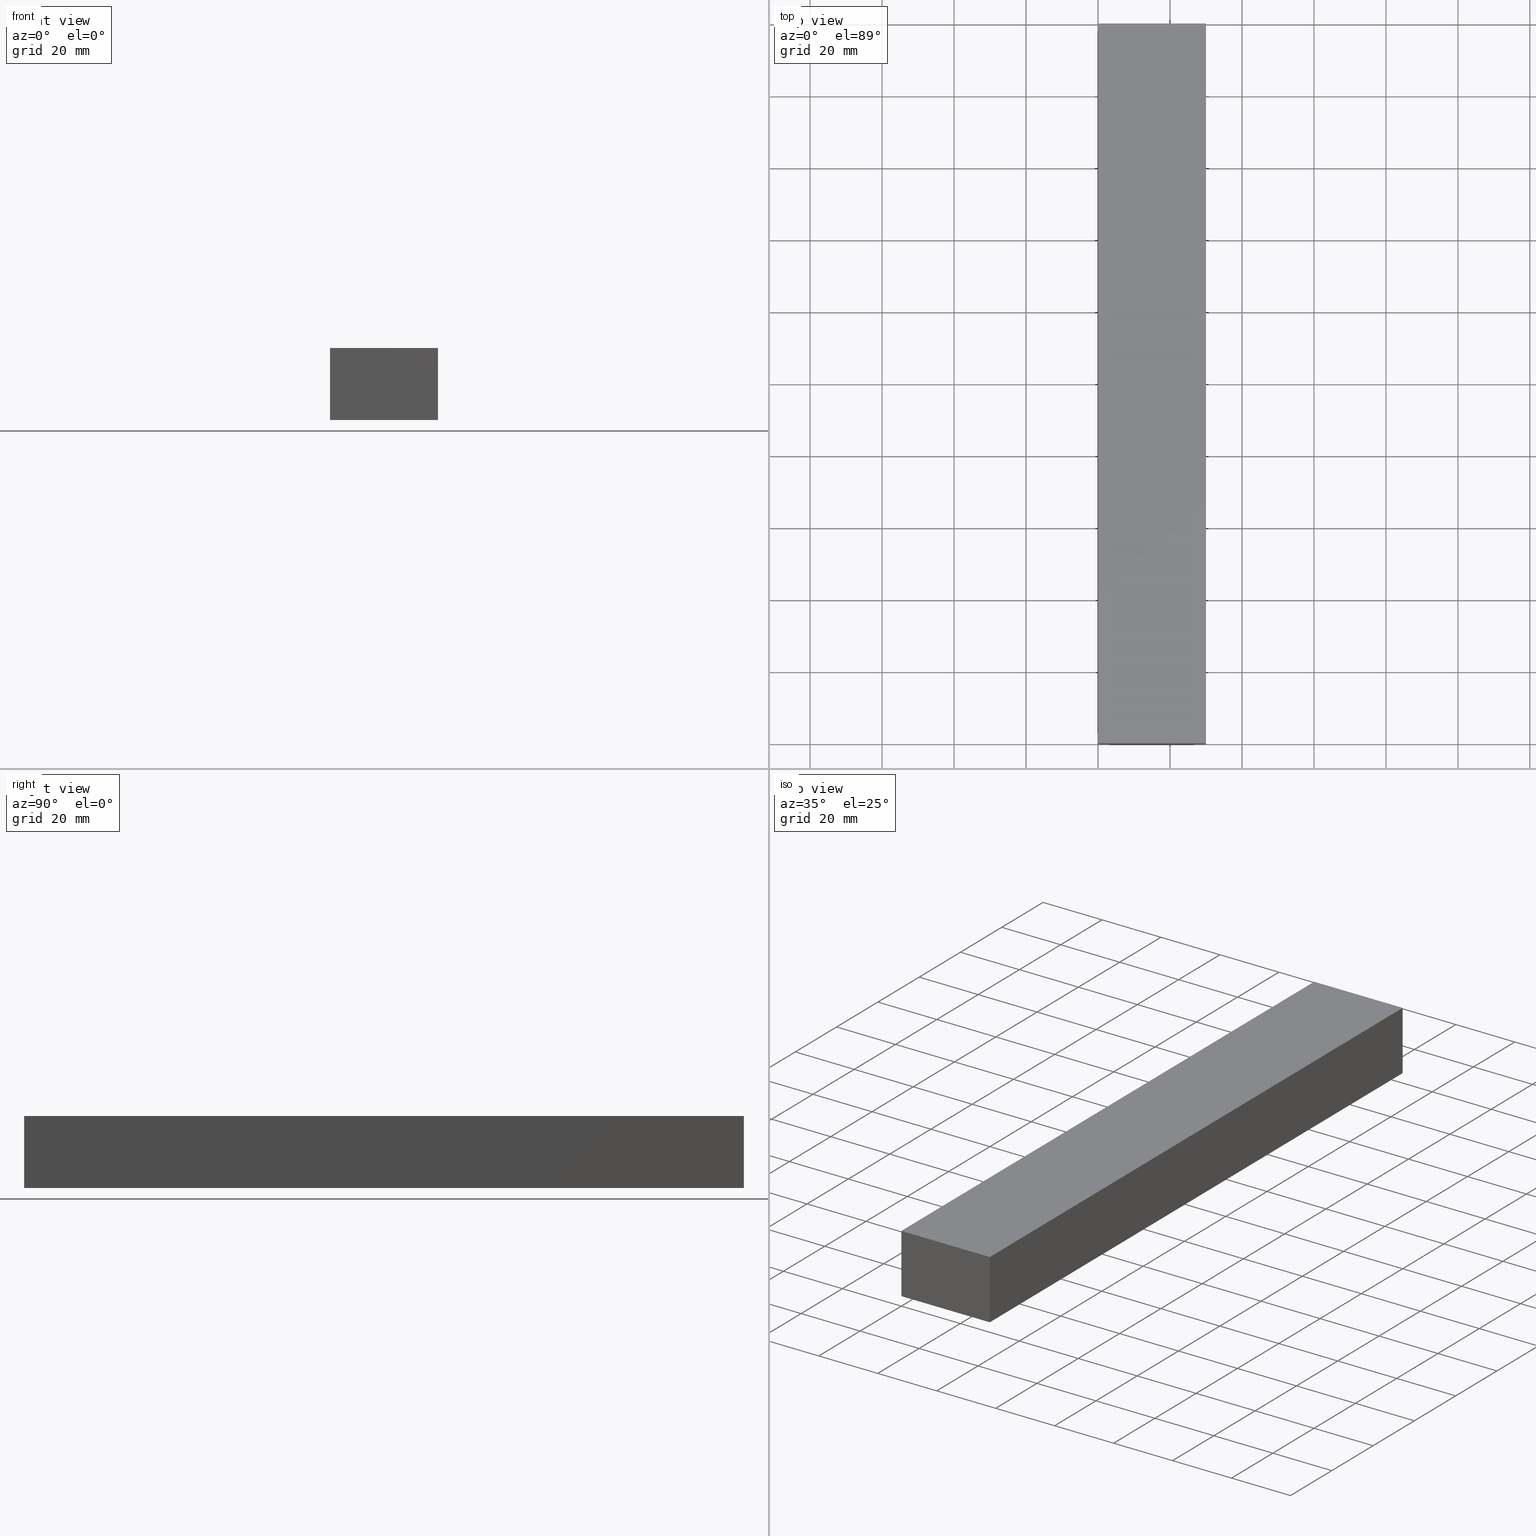
[diagram: canonical four-view strip — front | top / right | iso, engineering-drawing reading convention]
A machine part, canonical four-view strip (front | top / right | iso — engineering-drawing reading convention). The complete STEP part file that produces these views, byte-faithful:
ISO-10303-21;
HEADER;
FILE_DESCRIPTION (( 'STEP AP214' ),
    '1' );
FILE_NAME ('TM_340_18.STEP',
    '2016-05-09T07:18:51',
    ( '' ),
    ( '' ),
    'SwSTEP 2.0',
    'SolidWorks 2015',
    '' );
FILE_SCHEMA (( 'AUTOMOTIVE_DESIGN' ));
ENDSEC;

DATA;
#1 = FACE_OUTER_BOUND ( 'NONE', #51, .T. ) ;
#2 = EDGE_LOOP ( 'NONE', ( #26, #179, #107, #213 ) ) ;
#3 = AXIS2_PLACEMENT_3D ( 'NONE', #12, #77, #70 ) ;
#4 = CARTESIAN_POINT ( 'NONE',  ( 30.00000000000000000, 200.0000000000000000, -10.00000000000000000 ) ) ;
#5 = DIRECTION ( 'NONE',  ( -0.0000000000000000000, 0.0000000000000000000, 1.000000000000000000 ) ) ;
#6 = ADVANCED_FACE ( 'NONE', ( #190 ), #117, .T. ) ;
#7 = ORIENTED_EDGE ( 'NONE', *, *, #164, .F. ) ;
#8 = CARTESIAN_POINT ( 'NONE',  ( 30.00000000000000000, 200.0000000000000000, -10.00000000000000000 ) ) ;
#9 = DIRECTION ( 'NONE',  ( 0.0000000000000000000, 0.0000000000000000000, 1.000000000000000000 ) ) ;
#10 = LINE ( 'NONE', #123, #193 ) ;
#11 = ORIENTED_EDGE ( 'NONE', *, *, #150, .F. ) ;
#12 = CARTESIAN_POINT ( 'NONE',  ( 0.0000000000000000000, 0.0000000000000000000, 0.0000000000000000000 ) ) ;
#13 = FILL_AREA_STYLE_COLOUR ( '', #25 ) ;
#14 = VECTOR ( 'NONE', #145, 1000.000000000000000 ) ;
#15 = PRODUCT_CONTEXT ( 'NONE', #85, 'mechanical' ) ;
#16 = VERTEX_POINT ( 'NONE', #53 ) ;
#17 = UNCERTAINTY_MEASURE_WITH_UNIT (LENGTH_MEASURE( 1.000000000000000100E-005 ), #48, 'distance_accuracy_value', 'NONE');
#18 = DIRECTION ( 'NONE',  ( 1.000000000000000000, 0.0000000000000000000, 0.0000000000000000000 ) ) ;
#19 =( GEOMETRIC_REPRESENTATION_CONTEXT ( 3 ) GLOBAL_UNCERTAINTY_ASSIGNED_CONTEXT ( ( #17 ) ) GLOBAL_UNIT_ASSIGNED_CONTEXT ( ( #48, #102, #20 ) ) REPRESENTATION_CONTEXT ( 'NONE', 'WORKASPACE' ) );
#20 =( NAMED_UNIT ( * ) SI_UNIT ( $, .STERADIAN. ) SOLID_ANGLE_UNIT ( ) );
#21 = CARTESIAN_POINT ( 'NONE',  ( 0.0000000000000000000, 0.0000000000000000000, -10.00000000000000000 ) ) ;
#22 = DIRECTION ( 'NONE',  ( -1.000000000000000000, 0.0000000000000000000, 0.0000000000000000000 ) ) ;
#23 = ORIENTED_EDGE ( 'NONE', *, *, #65, .T. ) ;
#24 = CARTESIAN_POINT ( 'NONE',  ( 30.00000000000000000, 200.0000000000000000, -10.00000000000000000 ) ) ;
#25 = COLOUR_RGB ( '',0.7921568627450980000, 0.8196078431372548800, 0.9333333333333333500 ) ;
#26 = ORIENTED_EDGE ( 'NONE', *, *, #97, .F. ) ;
#27 = SHAPE_REPRESENTATION ( 'TM_340_18', ( #56, #155 ), #194 ) ;
#28 = MECHANICAL_DESIGN_GEOMETRIC_PRESENTATION_REPRESENTATION (  '', ( #52 ), #19 ) ;
#29 = VECTOR ( 'NONE', #126, 1000.000000000000000 ) ;
#30 = APPLICATION_CONTEXT ( 'automotive_design' ) ;
#31 = CARTESIAN_POINT ( 'NONE',  ( 0.0000000000000000000, 0.0000000000000000000, -10.00000000000000000 ) ) ;
#32 = DIRECTION ( 'NONE',  ( 1.000000000000000000, 0.0000000000000000000, 0.0000000000000000000 ) ) ;
#33 = PLANE ( 'NONE',  #136 ) ;
#34 = LINE ( 'NONE', #90, #29 ) ;
#35 =( LENGTH_UNIT ( ) NAMED_UNIT ( * ) SI_UNIT ( .MILLI., .METRE. ) );
#36 = ADVANCED_FACE ( 'NONE', ( #43 ), #221, .F. ) ;
#37 = DIRECTION ( 'NONE',  ( 0.0000000000000000000, 0.0000000000000000000, 1.000000000000000000 ) ) ;
#38 =( NAMED_UNIT ( * ) PLANE_ANGLE_UNIT ( ) SI_UNIT ( $, .RADIAN. ) );
#39 = ORIENTED_EDGE ( 'NONE', *, *, #135, .F. ) ;
#40 = SURFACE_STYLE_USAGE ( .BOTH. , #201 ) ;
#41 = SHAPE_DEFINITION_REPRESENTATION ( #139, #27 ) ;
#42 = PRESENTATION_LAYER_ASSIGNMENT (  '', '', ( #52 ) ) ;
#43 = FACE_OUTER_BOUND ( 'NONE', #204, .T. ) ;
#44 = DIRECTION ( 'NONE',  ( 0.0000000000000000000, 0.0000000000000000000, 1.000000000000000000 ) ) ;
#45 = DIRECTION ( 'NONE',  ( 1.000000000000000000, 0.0000000000000000000, 0.0000000000000000000 ) ) ;
#46 = ORIENTED_EDGE ( 'NONE', *, *, #110, .F. ) ;
#47 = ORIENTED_EDGE ( 'NONE', *, *, #101, .F. ) ;
#48 =( LENGTH_UNIT ( ) NAMED_UNIT ( * ) SI_UNIT ( .MILLI., .METRE. ) );
#49 = VECTOR ( 'NONE', #22, 1000.000000000000000 ) ;
#50 = PRODUCT_DEFINITION ( 'UNKNOWN', '', #230, #64 ) ;
#51 = EDGE_LOOP ( 'NONE', ( #87, #11, #67, #62 ) ) ;
#52 = STYLED_ITEM ( 'NONE', ( #173 ), #187 ) ;
#53 = CARTESIAN_POINT ( 'NONE',  ( 30.00000000000000000, 0.0000000000000000000, 10.00000000000000000 ) ) ;
#54 = DIRECTION ( 'NONE',  ( 1.000000000000000000, 0.0000000000000000000, 0.0000000000000000000 ) ) ;
#55 = DIRECTION ( 'NONE',  ( 0.0000000000000000000, -0.0000000000000000000, -1.000000000000000000 ) ) ;
#56 = AXIS2_PLACEMENT_3D ( 'NONE', #137, #88, #202 ) ;
#57 = VECTOR ( 'NONE', #93, 1000.000000000000000 ) ;
#58 =( NAMED_UNIT ( * ) PLANE_ANGLE_UNIT ( ) SI_UNIT ( $, .RADIAN. ) );
#59 = CARTESIAN_POINT ( 'NONE',  ( 0.0000000000000000000, 200.0000000000000000, 10.00000000000000000 ) ) ;
#60 = DIRECTION ( 'NONE',  ( 0.0000000000000000000, -1.000000000000000000, 0.0000000000000000000 ) ) ;
#61 =( GEOMETRIC_REPRESENTATION_CONTEXT ( 3 ) GLOBAL_UNCERTAINTY_ASSIGNED_CONTEXT ( ( #157 ) ) GLOBAL_UNIT_ASSIGNED_CONTEXT ( ( #35, #38, #207 ) ) REPRESENTATION_CONTEXT ( 'NONE', 'WORKASPACE' ) );
#62 = ORIENTED_EDGE ( 'NONE', *, *, #131, .T. ) ;
#63 = CARTESIAN_POINT ( 'NONE',  ( 0.0000000000000000000, 0.0000000000000000000, 10.00000000000000000 ) ) ;
#64 = PRODUCT_DEFINITION_CONTEXT ( 'detailed design', #30, 'design' ) ;
#65 = EDGE_CURVE ( 'NONE', #16, #71, #89, .T. ) ;
#66 = LINE ( 'NONE', #116, #14 ) ;
#67 = ORIENTED_EDGE ( 'NONE', *, *, #101, .T. ) ;
#68 = PRESENTATION_LAYER_ASSIGNMENT (  '', '', ( #184 ) ) ;
#69 = APPLICATION_PROTOCOL_DEFINITION ( 'draft international standard', 'automotive_design', 1998, #85 ) ;
#70 = DIRECTION ( 'NONE',  ( 1.000000000000000000, 0.0000000000000000000, 0.0000000000000000000 ) ) ;
#71 = VERTEX_POINT ( 'NONE', #163 ) ;
#72 = APPLICATION_PROTOCOL_DEFINITION ( 'draft international standard', 'automotive_design', 1998, #30 ) ;
#73 = PLANE ( 'NONE',  #80 ) ;
#74 = EDGE_CURVE ( 'NONE', #71, #100, #129, .T. ) ;
#75 = PRODUCT_CONTEXT ( 'NONE', #165, 'mechanical' ) ;
#76 = DIRECTION ( 'NONE',  ( 1.000000000000000000, 0.0000000000000000000, 0.0000000000000000000 ) ) ;
#77 = DIRECTION ( 'NONE',  ( 0.0000000000000000000, 0.0000000000000000000, 1.000000000000000000 ) ) ;
#78 = DIRECTION ( 'NONE',  ( 0.0000000000000000000, 0.0000000000000000000, 1.000000000000000000 ) ) ;
#79 = CLOSED_SHELL ( 'NONE', ( #211, #166, #6, #156, #36, #125 ) ) ;
#80 = AXIS2_PLACEMENT_3D ( 'NONE', #8, #149, #9 ) ;
#81 = COLOUR_RGB ( '',0.7921568627450980000, 0.8196078431372548800, 0.9333333333333333500 ) ;
#82 = ORIENTED_EDGE ( 'NONE', *, *, #135, .T. ) ;
#83 = VECTOR ( 'NONE', #175, 1000.000000000000000 ) ;
#84 = EDGE_CURVE ( 'NONE', #195, #209, #183, .T. ) ;
#85 = APPLICATION_CONTEXT ( 'automotive_design' ) ;
#86 = SHAPE_REPRESENTATION_RELATIONSHIP ( 'NONE' , 'NONE' ,  #192, #187 ) ;
#87 = ORIENTED_EDGE ( 'NONE', *, *, #114, .F. ) ;
#88 = DIRECTION ( 'NONE',  ( 0.0000000000000000000, 0.0000000000000000000, 1.000000000000000000 ) ) ;
#89 = LINE ( 'NONE', #228, #134 ) ;
#90 = CARTESIAN_POINT ( 'NONE',  ( 0.0000000000000000000, 200.0000000000000000, -10.00000000000000000 ) ) ;
#91 = FACE_OUTER_BOUND ( 'NONE', #2, .T. ) ;
#92 = VERTEX_POINT ( 'NONE', #216 ) ;
#93 = DIRECTION ( 'NONE',  ( 0.0000000000000000000, 0.0000000000000000000, 1.000000000000000000 ) ) ;
#94 = CARTESIAN_POINT ( 'NONE',  ( 30.00000000000000000, 200.0000000000000000, 10.00000000000000000 ) ) ;
#95 = ORIENTED_EDGE ( 'NONE', *, *, #114, .T. ) ;
#96 = CARTESIAN_POINT ( 'NONE',  ( 0.0000000000000000000, 0.0000000000000000000, -10.00000000000000000 ) ) ;
#97 = EDGE_CURVE ( 'NONE', #112, #16, #180, .T. ) ;
#98 = LINE ( 'NONE', #128, #235 ) ;
#99 = ORIENTED_EDGE ( 'NONE', *, *, #164, .T. ) ;
#100 = VERTEX_POINT ( 'NONE', #59 ) ;
#101 = EDGE_CURVE ( 'NONE', #92, #195, #34, .T. ) ;
#102 =( NAMED_UNIT ( * ) PLANE_ANGLE_UNIT ( ) SI_UNIT ( $, .RADIAN. ) );
#103 = PRODUCT_DEFINITION_SHAPE ( 'NONE', 'NONE',  #239 ) ;
#104 = MECHANICAL_DESIGN_GEOMETRIC_PRESENTATION_REPRESENTATION (  '', ( #184 ), #61 ) ;
#105 = VECTOR ( 'NONE', #60, 1000.000000000000000 ) ;
#106 = MANIFOLD_SOLID_BREP ( '�޽ - �����o��1', #79 ) ;
#107 = ORIENTED_EDGE ( 'NONE', *, *, #84, .T. ) ;
#108 =( NAMED_UNIT ( * ) SI_UNIT ( $, .STERADIAN. ) SOLID_ANGLE_UNIT ( ) );
#109 = PRODUCT_RELATED_PRODUCT_CATEGORY ( 'part', '', ( #227 ) ) ;
#110 = EDGE_CURVE ( 'NONE', #209, #158, #66, .T. ) ;
#111 =( LENGTH_UNIT ( ) NAMED_UNIT ( * ) SI_UNIT ( .MILLI., .METRE. ) );
#112 = VERTEX_POINT ( 'NONE', #206 ) ;
#113 = CARTESIAN_POINT ( 'NONE',  ( 30.00000000000000000, 0.0000000000000000000, -10.00000000000000000 ) ) ;
#114 = EDGE_CURVE ( 'NONE', #100, #112, #153, .T. ) ;
#115 = AXIS2_PLACEMENT_3D ( 'NONE', #191, #203, #55 ) ;
#116 = CARTESIAN_POINT ( 'NONE',  ( 30.00000000000000000, 0.0000000000000000000, -10.00000000000000000 ) ) ;
#117 = PLANE ( 'NONE',  #177 ) ;
#118 = PLANE ( 'NONE',  #115 ) ;
#119 = ORIENTED_EDGE ( 'NONE', *, *, #110, .T. ) ;
#120 = PRODUCT_RELATED_PRODUCT_CATEGORY ( 'part', '', ( #152 ) ) ;
#121 = EDGE_CURVE ( 'NONE', #209, #16, #200, .T. ) ;
#122 = CARTESIAN_POINT ( 'NONE',  ( 0.0000000000000000000, 0.0000000000000000000, 0.0000000000000000000 ) ) ;
#123 = CARTESIAN_POINT ( 'NONE',  ( 0.0000000000000000000, 200.0000000000000000, -10.00000000000000000 ) ) ;
#124 = VECTOR ( 'NONE', #76, 1000.000000000000000 ) ;
#125 = ADVANCED_FACE ( 'NONE', ( #198 ), #33, .T. ) ;
#126 = DIRECTION ( 'NONE',  ( 0.0000000000000000000, -1.000000000000000000, 0.0000000000000000000 ) ) ;
#127 = DIRECTION ( 'NONE',  ( 1.000000000000000000, 0.0000000000000000000, 0.0000000000000000000 ) ) ;
#128 = CARTESIAN_POINT ( 'NONE',  ( 30.00000000000000000, 200.0000000000000000, -10.00000000000000000 ) ) ;
#129 = LINE ( 'NONE', #94, #83 ) ;
#130 = CARTESIAN_POINT ( 'NONE',  ( 0.0000000000000000000, 0.0000000000000000000, 10.00000000000000000 ) ) ;
#131 = EDGE_CURVE ( 'NONE', #195, #112, #146, .T. ) ;
#132 = EDGE_LOOP ( 'NONE', ( #95, #141, #23, #161 ) ) ;
#133 = ITEM_DEFINED_TRANSFORMATION ( 'NONE', 'NONE', #155,  #205 ) ;
#134 = VECTOR ( 'NONE', #218, 1000.000000000000000 ) ;
#135 = EDGE_CURVE ( 'NONE', #158, #92, #234, .T. ) ;
#136 = AXIS2_PLACEMENT_3D ( 'NONE', #63, #151, #18 ) ;
#137 = CARTESIAN_POINT ( 'NONE',  ( 0.0000000000000000000, 0.0000000000000000000, 0.0000000000000000000 ) ) ;
#138 = APPLICATION_PROTOCOL_DEFINITION ( 'draft international standard', 'automotive_design', 1998, #172 ) ;
#139 = PRODUCT_DEFINITION_SHAPE ( 'NONE', 'NONE',  #50 ) ;
#140 = FACE_OUTER_BOUND ( 'NONE', #199, .T. ) ;
#141 = ORIENTED_EDGE ( 'NONE', *, *, #97, .T. ) ;
#142 = ORIENTED_EDGE ( 'NONE', *, *, #121, .F. ) ;
#143 = CARTESIAN_POINT ( 'NONE',  ( 0.0000000000000000000, 200.0000000000000000, -10.00000000000000000 ) ) ;
#144 =( NAMED_UNIT ( * ) SI_UNIT ( $, .STERADIAN. ) SOLID_ANGLE_UNIT ( ) );
#145 = DIRECTION ( 'NONE',  ( 0.0000000000000000000, 1.000000000000000000, 0.0000000000000000000 ) ) ;
#146 = LINE ( 'NONE', #182, #57 ) ;
#147 = EDGE_LOOP ( 'NONE', ( #222, #142, #119, #99 ) ) ;
#148 = UNCERTAINTY_MEASURE_WITH_UNIT (LENGTH_MEASURE( 1.000000000000000100E-005 ), #111, 'distance_accuracy_value', 'NONE');
#149 = DIRECTION ( 'NONE',  ( 0.0000000000000000000, 1.000000000000000000, -0.0000000000000000000 ) ) ;
#150 = EDGE_CURVE ( 'NONE', #92, #100, #10, .T. ) ;
#151 = DIRECTION ( 'NONE',  ( -0.0000000000000000000, 0.0000000000000000000, 1.000000000000000000 ) ) ;
#152 = PRODUCT ( 'TM_340_18', 'TM_340_18', '', ( #15 ) ) ;
#153 = LINE ( 'NONE', #168, #105 ) ;
#154 = PLANE ( 'NONE',  #231 ) ;
#155 = AXIS2_PLACEMENT_3D ( 'NONE', #233, #237, #32 ) ;
#156 = ADVANCED_FACE ( 'NONE', ( #91 ), #118, .T. ) ;
#157 = UNCERTAINTY_MEASURE_WITH_UNIT (LENGTH_MEASURE( 1.000000000000000100E-005 ), #35, 'distance_accuracy_value', 'NONE');
#158 = VERTEX_POINT ( 'NONE', #24 ) ;
#159 = AXIS2_PLACEMENT_3D ( 'NONE', #21, #5, #127 ) ;
#160 = PRODUCT_DEFINITION_SHAPE ( 'NONE', 'NONE',  #170 ) ;
#161 = ORIENTED_EDGE ( 'NONE', *, *, #74, .T. ) ;
#162 = FILL_AREA_STYLE_COLOUR ( '', #81 ) ;
#163 = CARTESIAN_POINT ( 'NONE',  ( 30.00000000000000000, 200.0000000000000000, 10.00000000000000000 ) ) ;
#164 = EDGE_CURVE ( 'NONE', #158, #71, #98, .T. ) ;
#165 = APPLICATION_CONTEXT ( 'automotive_design' ) ;
#166 = ADVANCED_FACE ( 'NONE', ( #140 ), #73, .T. ) ;
#167 = APPLICATION_PROTOCOL_DEFINITION ( 'draft international standard', 'automotive_design', 1998, #165 ) ;
#168 = CARTESIAN_POINT ( 'NONE',  ( 0.0000000000000000000, 200.0000000000000000, 10.00000000000000000 ) ) ;
#169 = DIRECTION ( 'NONE',  ( 1.000000000000000000, 0.0000000000000000000, 0.0000000000000000000 ) ) ;
#170 = PRODUCT_DEFINITION ( 'UNKNOWN', '', #226, #188 ) ;
#171 =( REPRESENTATION_RELATIONSHIP ('NONE','NONE', #27, #192 ) REPRESENTATION_RELATIONSHIP_WITH_TRANSFORMATION ( #133 )SHAPE_REPRESENTATION_RELATIONSHIP( ) );
#172 = APPLICATION_CONTEXT ( 'automotive_design' ) ;
#173 = PRESENTATION_STYLE_ASSIGNMENT (( #40 ) ) ;
#174 = ORIENTED_EDGE ( 'NONE', *, *, #150, .T. ) ;
#175 = DIRECTION ( 'NONE',  ( -1.000000000000000000, 0.0000000000000000000, 0.0000000000000000000 ) ) ;
#176 = PRESENTATION_STYLE_ASSIGNMENT (( #224 ) ) ;
#177 = AXIS2_PLACEMENT_3D ( 'NONE', #208, #45, #223 ) ;
#178 = SURFACE_SIDE_STYLE ('',( #225 ) ) ;
#179 = ORIENTED_EDGE ( 'NONE', *, *, #131, .F. ) ;
#180 = LINE ( 'NONE', #130, #124 ) ;
#181 = FILL_AREA_STYLE ('',( #13 ) ) ;
#182 = CARTESIAN_POINT ( 'NONE',  ( 0.0000000000000000000, 0.0000000000000000000, -10.00000000000000000 ) ) ;
#183 = LINE ( 'NONE', #96, #186 ) ;
#184 = STYLED_ITEM ( 'NONE', ( #176 ), #106 ) ;
#185 = DIRECTION ( 'NONE',  ( 0.0000000000000000000, 0.0000000000000000000, 1.000000000000000000 ) ) ;
#186 = VECTOR ( 'NONE', #169, 1000.000000000000000 ) ;
#187 = ADVANCED_BREP_SHAPE_REPRESENTATION ( '', ( #106, #205 ), #215 ) ;
#188 = PRODUCT_DEFINITION_CONTEXT ( 'detailed design', #172, 'design' ) ;
#189 = SHAPE_DEFINITION_REPRESENTATION ( #160, #192 ) ;
#190 = FACE_OUTER_BOUND ( 'NONE', #147, .T. ) ;
#191 = CARTESIAN_POINT ( 'NONE',  ( 0.0000000000000000000, 0.0000000000000000000, -10.00000000000000000 ) ) ;
#192 = SHAPE_REPRESENTATION ( 'rubber foam', ( #205 ), #215 ) ;
#193 = VECTOR ( 'NONE', #44, 1000.000000000000000 ) ;
#194 =( GEOMETRIC_REPRESENTATION_CONTEXT ( 3 ) GLOBAL_UNCERTAINTY_ASSIGNED_CONTEXT ( ( #148 ) ) GLOBAL_UNIT_ASSIGNED_CONTEXT ( ( #111, #236, #144 ) ) REPRESENTATION_CONTEXT ( 'NONE', 'WORKASPACE' ) );
#195 = VERTEX_POINT ( 'NONE', #31 ) ;
#196 = UNCERTAINTY_MEASURE_WITH_UNIT (LENGTH_MEASURE( 1.000000000000000100E-005 ), #220, 'distance_accuracy_value', 'NONE');
#197 = ORIENTED_EDGE ( 'NONE', *, *, #84, .F. ) ;
#198 = FACE_OUTER_BOUND ( 'NONE', #132, .T. ) ;
#199 = EDGE_LOOP ( 'NONE', ( #238, #7, #82, #174 ) ) ;
#200 = LINE ( 'NONE', #113, #217 ) ;
#201 = SURFACE_SIDE_STYLE ('',( #212 ) ) ;
#202 = DIRECTION ( 'NONE',  ( 1.000000000000000000, 0.0000000000000000000, 0.0000000000000000000 ) ) ;
#203 = DIRECTION ( 'NONE',  ( 0.0000000000000000000, -1.000000000000000000, 0.0000000000000000000 ) ) ;
#204 = EDGE_LOOP ( 'NONE', ( #47, #39, #46, #197 ) ) ;
#205 = AXIS2_PLACEMENT_3D ( 'NONE', #122, #78, #54 ) ;
#206 = CARTESIAN_POINT ( 'NONE',  ( 0.0000000000000000000, 0.0000000000000000000, 10.00000000000000000 ) ) ;
#207 =( NAMED_UNIT ( * ) SI_UNIT ( $, .STERADIAN. ) SOLID_ANGLE_UNIT ( ) );
#208 = CARTESIAN_POINT ( 'NONE',  ( 30.00000000000000000, 0.0000000000000000000, -10.00000000000000000 ) ) ;
#209 = VERTEX_POINT ( 'NONE', #214 ) ;
#210 = DIRECTION ( 'NONE',  ( -1.000000000000000000, 0.0000000000000000000, 0.0000000000000000000 ) ) ;
#211 = ADVANCED_FACE ( 'NONE', ( #1 ), #154, .T. ) ;
#212 = SURFACE_STYLE_FILL_AREA ( #181 ) ;
#213 = ORIENTED_EDGE ( 'NONE', *, *, #121, .T. ) ;
#214 = CARTESIAN_POINT ( 'NONE',  ( 30.00000000000000000, 0.0000000000000000000, -10.00000000000000000 ) ) ;
#215 =( GEOMETRIC_REPRESENTATION_CONTEXT ( 3 ) GLOBAL_UNCERTAINTY_ASSIGNED_CONTEXT ( ( #196 ) ) GLOBAL_UNIT_ASSIGNED_CONTEXT ( ( #220, #58, #108 ) ) REPRESENTATION_CONTEXT ( 'NONE', 'WORKASPACE' ) );
#216 = CARTESIAN_POINT ( 'NONE',  ( 0.0000000000000000000, 200.0000000000000000, -10.00000000000000000 ) ) ;
#217 = VECTOR ( 'NONE', #37, 1000.000000000000000 ) ;
#218 = DIRECTION ( 'NONE',  ( 0.0000000000000000000, 1.000000000000000000, 0.0000000000000000000 ) ) ;
#219 = DIRECTION ( 'NONE',  ( 0.0000000000000000000, 0.0000000000000000000, 1.000000000000000000 ) ) ;
#220 =( LENGTH_UNIT ( ) NAMED_UNIT ( * ) SI_UNIT ( .MILLI., .METRE. ) );
#221 = PLANE ( 'NONE',  #159 ) ;
#222 = ORIENTED_EDGE ( 'NONE', *, *, #65, .F. ) ;
#223 = DIRECTION ( 'NONE',  ( 0.0000000000000000000, 0.0000000000000000000, -1.000000000000000000 ) ) ;
#224 = SURFACE_STYLE_USAGE ( .BOTH. , #178 ) ;
#225 = SURFACE_STYLE_FILL_AREA ( #229 ) ;
#226 = PRODUCT_DEFINITION_FORMATION_WITH_SPECIFIED_SOURCE ( 'ANY', '', #227, .NOT_KNOWN. ) ;
#227 = PRODUCT ( 'rubber foam', 'rubber foam', '', ( #75 ) ) ;
#228 = CARTESIAN_POINT ( 'NONE',  ( 30.00000000000000000, 0.0000000000000000000, 10.00000000000000000 ) ) ;
#229 = FILL_AREA_STYLE ('',( #162 ) ) ;
#230 = PRODUCT_DEFINITION_FORMATION_WITH_SPECIFIED_SOURCE ( 'ANY', '', #152, .NOT_KNOWN. ) ;
#231 = AXIS2_PLACEMENT_3D ( 'NONE', #143, #210, #185 ) ;
#232 = CONTEXT_DEPENDENT_SHAPE_REPRESENTATION ( #171, #103 ) ;
#233 = CARTESIAN_POINT ( 'NONE',  ( 0.0000000000000000000, 0.0000000000000000000, 0.0000000000000000000 ) ) ;
#234 = LINE ( 'NONE', #4, #49 ) ;
#235 = VECTOR ( 'NONE', #219, 1000.000000000000000 ) ;
#236 =( NAMED_UNIT ( * ) PLANE_ANGLE_UNIT ( ) SI_UNIT ( $, .RADIAN. ) );
#237 = DIRECTION ( 'NONE',  ( 0.0000000000000000000, 0.0000000000000000000, 1.000000000000000000 ) ) ;
#238 = ORIENTED_EDGE ( 'NONE', *, *, #74, .F. ) ;
#239 = NEXT_ASSEMBLY_USAGE_OCCURRENCE ( 'NAUO1', ' ', ' ', #50, #170, $ ) ;
ENDSEC;
END-ISO-10303-21;
